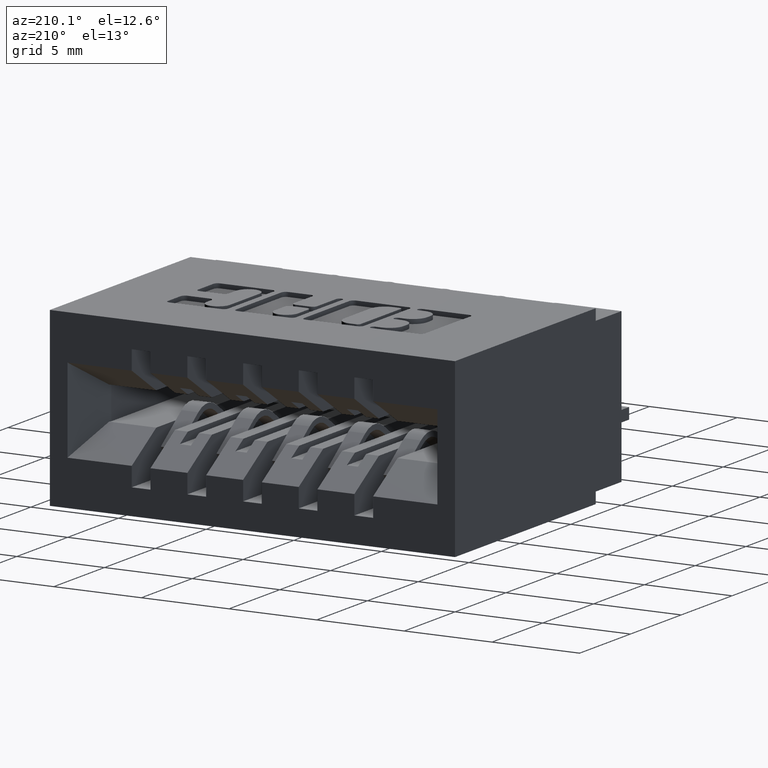
[diagram: clean part render]
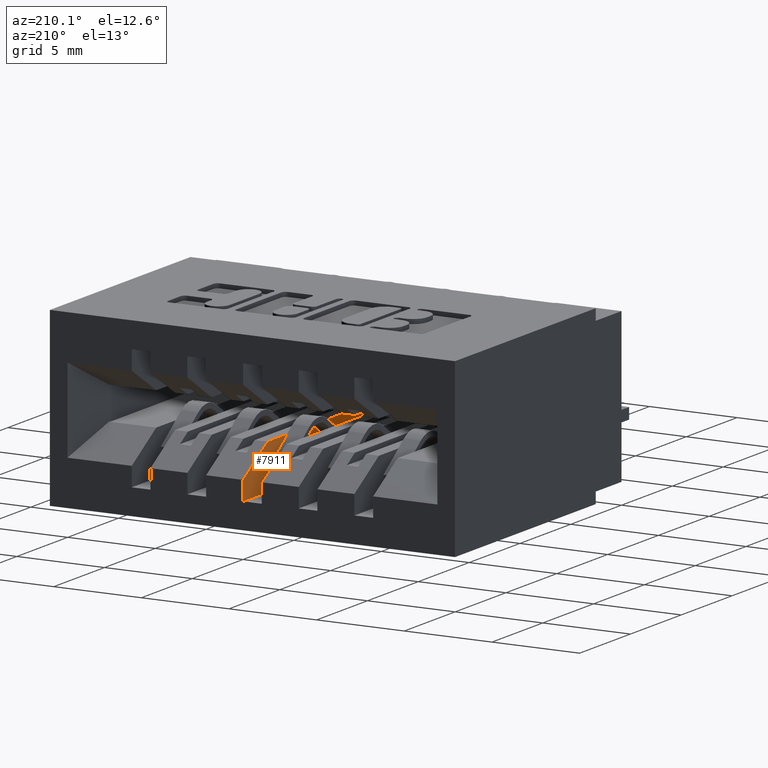
[diagram: same view with one face highlighted and labeled with its STEP entity id]
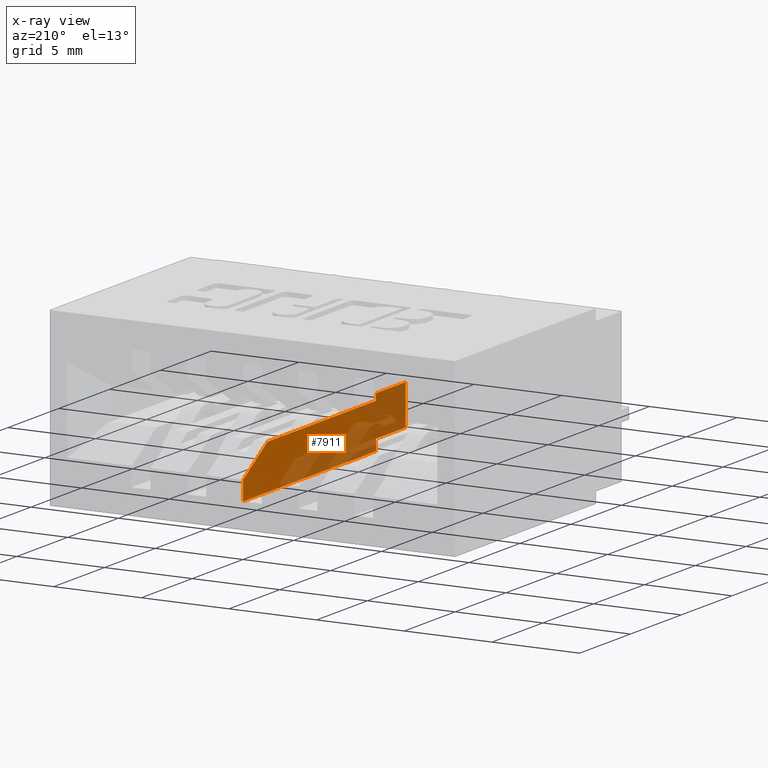
[diagram: x-ray of the same camera — body ghosted, the highlighted face saturated]
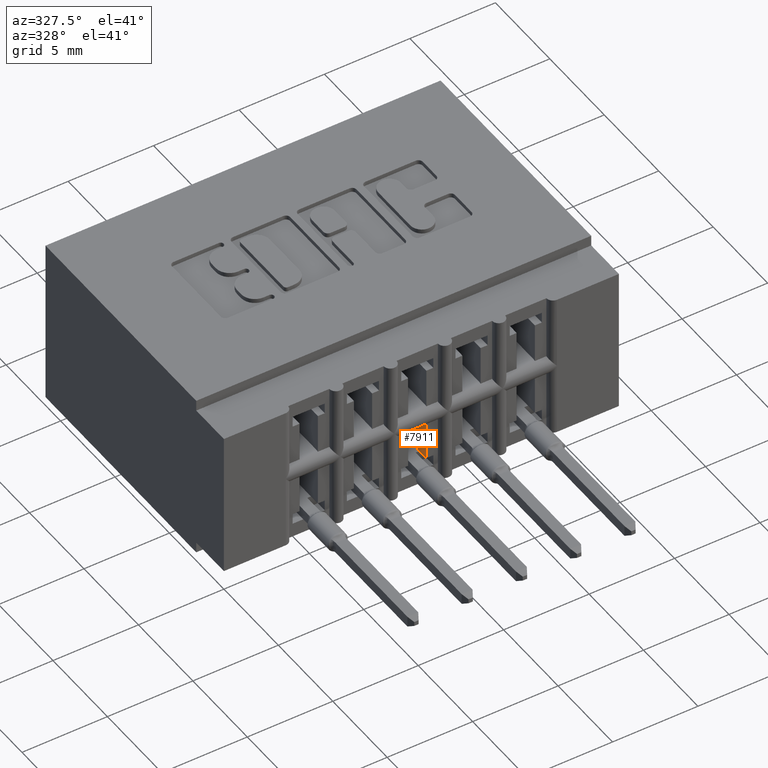
[diagram: same view with one face highlighted and labeled with its STEP entity id]
A machine part, auxiliary view. The second image highlights one B-rep face of the part: STEP entity #7911.
The next image is the same camera in x-ray: the body ghosted, the highlighted face saturated — about 55% of this face is hidden behind the body in this view.
A second angle (auxiliary view) of the same face is appended — the face is thin or edge-on in the first view.
In plain terms, the highlighted planar face has unit normal (1, -0, -0).
Its self-contained STEP definition (entity closure, byte-faithful):
#22 = VECTOR ( 'NONE', #10201, 39.37007874015748143 ) ;
#162 = VECTOR ( 'NONE', #4365, 39.37007874015748143 ) ;
#280 = VERTEX_POINT ( 'NONE', #9713 ) ;
#295 = CARTESIAN_POINT ( 'NONE',  ( 0.4759999999999996456, 0.01499999999999994220, -0.3075000000000000511 ) ) ;
#301 = EDGE_CURVE ( 'NONE', #280, #4105, #10925, .T. ) ;
#715 = CARTESIAN_POINT ( 'NONE',  ( 0.4759999999999995901, 0.01499999999999997169, -0.2158566536146137582 ) ) ;
#824 = LINE ( 'NONE', #1872, #4732 ) ;
#1218 = LINE ( 'NONE', #3228, #7660 ) ;
#1350 = CARTESIAN_POINT ( 'NONE',  ( 0.4759999999990887076, 0.1299999999999999212, -0.2169999999999998597 ) ) ;
#1391 = CARTESIAN_POINT ( 'NONE',  ( 0.4759999999999995901, 0.5499999999999998224, -0.2320000000000000118 ) ) ;
#1516 = CARTESIAN_POINT ( 'NONE',  ( 0.4759999999999995901, 0.02200000000000000566, -0.2169999999999995544 ) ) ;
#1754 = CARTESIAN_POINT ( 'NONE',  ( 0.4759999999999995901, 0.1299999999999999212, -0.2320000000000000118 ) ) ;
#1872 = CARTESIAN_POINT ( 'NONE',  ( 0.4759999999999995901, 0.1299999999999999212, -0.1580000000000000848 ) ) ;
#1884 = EDGE_CURVE ( 'NONE', #3670, #4957, #4199, .T. ) ;
#2242 = VECTOR ( 'NONE', #7921, 39.37007874015748143 ) ;
#2521 = ORIENTED_EDGE ( 'NONE', *, *, #10321, .F. ) ;
#2550 = VERTEX_POINT ( 'NONE', #12272 ) ;
#2693 = ORIENTED_EDGE ( 'NONE', *, *, #11906, .F. ) ;
#3084 = ORIENTED_EDGE ( 'NONE', *, *, #3450, .F. ) ;
#3228 = CARTESIAN_POINT ( 'NONE',  ( 0.4759999999999996456, -1.010728034814419673E-32, -0.3325000000000000178 ) ) ;
#3450 = EDGE_CURVE ( 'NONE', #10102, #5725, #1218, .T. ) ;
#3670 = VERTEX_POINT ( 'NONE', #1516 ) ;
#3865 = DIRECTION ( 'NONE',  ( -2.385081683068867604E-16, 0.0000000000000000000, -1.000000000000000000 ) ) ;
#3988 = CARTESIAN_POINT ( 'NONE',  ( 0.4759999999999996456, 0.6449999999999999067, -0.3325000000000000178 ) ) ;
#4105 = VERTEX_POINT ( 'NONE', #1754 ) ;
#4123 = ORIENTED_EDGE ( 'NONE', *, *, #12384, .T. ) ;
#4199 = LINE ( 'NONE', #1350, #12503 ) ;
#4365 = DIRECTION ( 'NONE',  ( -0.0000000000000000000, 1.000000000000000000, 2.626776916984869807E-16 ) ) ;
#4713 = FACE_OUTER_BOUND ( 'NONE', #12576, .T. ) ;
#4732 = VECTOR ( 'NONE', #4918, 39.37007874015748143 ) ;
#4884 = CARTESIAN_POINT ( 'NONE',  ( 0.4759999999990887076, 0.02200000000000000566, -0.1949999999999995626 ) ) ;
#4918 = DIRECTION ( 'NONE',  ( 2.385081683068867604E-16, 0.0000000000000000000, 1.000000000000000000 ) ) ;
#4957 = VERTEX_POINT ( 'NONE', #5003 ) ;
#5003 = CARTESIAN_POINT ( 'NONE',  ( 0.4759999999999995901, 0.1299999999999999212, -0.2169999999999998597 ) ) ;
#5084 = DIRECTION ( 'NONE',  ( 1.000000000000000000, -4.930380657631322689E-32, -2.385081683068867604E-16 ) ) ;
#5146 = VECTOR ( 'NONE', #10249, 39.37007874015748143 ) ;
#5402 = CARTESIAN_POINT ( 'NONE',  ( 0.4759999999999996456, 0.1299999999999999489, -0.3074999999999999956 ) ) ;
#5535 = AXIS2_PLACEMENT_3D ( 'NONE', #4884, #5084, #7828 ) ;
#5725 = VERTEX_POINT ( 'NONE', #3988 ) ;
#5932 = LINE ( 'NONE', #6124, #2242 ) ;
#6054 = ORIENTED_EDGE ( 'NONE', *, *, #8242, .F. ) ;
#6124 = CARTESIAN_POINT ( 'NONE',  ( 0.4759999999999996456, 0.01499999999999997169, -5.373951300518784932E-17 ) ) ;
#6197 = DIRECTION ( 'NONE',  ( 4.930380657631322689E-32, 1.000000000000000000, -1.137588725299933902E-47 ) ) ;
#6447 = VECTOR ( 'NONE', #6702, 39.37007874015748143 ) ;
#6702 = DIRECTION ( 'NONE',  ( -0.0000000000000000000, -0.0000000000000000000, -1.000000000000000000 ) ) ;
#6758 = CARTESIAN_POINT ( 'NONE',  ( 0.4759999999999996456, 0.1299999999999999489, -0.3325000000000000178 ) ) ;
#6833 = EDGE_CURVE ( 'NONE', #5725, #11348, #9238, .T. ) ;
#6840 = ORIENTED_EDGE ( 'NONE', *, *, #11151, .T. ) ;
#6980 = CARTESIAN_POINT ( 'NONE',  ( 0.4759999999999995901, 0.1299999999999999212, -0.2320000000000000118 ) ) ;
#7414 = VERTEX_POINT ( 'NONE', #715 ) ;
#7639 = AXIS2_PLACEMENT_3D ( 'NONE', #12799, #11679, #3865 ) ;
#7660 = VECTOR ( 'NONE', #6197, 39.37007874015748143 ) ;
#7775 = ORIENTED_EDGE ( 'NONE', *, *, #1884, .T. ) ;
#7828 = DIRECTION ( 'NONE',  ( 0.0000000000000000000, 0.0000000000000000000, -1.000000000000000000 ) ) ;
#7911 = ADVANCED_FACE ( 'NONE', ( #4713 ), #9572, .F. ) ;
#7921 = DIRECTION ( 'NONE',  ( -2.385081683068867604E-16, 0.0000000000000000000, -1.000000000000000000 ) ) ;
#8033 = CARTESIAN_POINT ( 'NONE',  ( 0.4759999999999996456, 0.1299999999999999489, -0.3325000000000000178 ) ) ;
#8173 = LINE ( 'NONE', #5402, #162 ) ;
#8242 = EDGE_CURVE ( 'NONE', #2550, #10102, #10212, .T. ) ;
#8388 = ORIENTED_EDGE ( 'NONE', *, *, #12354, .F. ) ;
#8424 = CARTESIAN_POINT ( 'NONE',  ( 0.4759999999999995901, 0.6449999999999999067, -0.2897500000000000075 ) ) ;
#8877 = DIRECTION ( 'NONE',  ( -4.930380657631322689E-32, -1.000000000000000000, 0.0000000000000000000 ) ) ;
#8968 = VECTOR ( 'NONE', #8877, 39.37007874015748143 ) ;
#9238 = LINE ( 'NONE', #11090, #22 ) ;
#9572 = PLANE ( 'NONE',  #7639 ) ;
#9647 = CIRCLE ( 'NONE', #5535, 0.02199999999999999872 ) ;
#9691 = VERTEX_POINT ( 'NONE', #295 ) ;
#9713 = CARTESIAN_POINT ( 'NONE',  ( 0.4759999999999995901, 0.5499999999999999334, -0.2320000000000000118 ) ) ;
#10102 = VERTEX_POINT ( 'NONE', #8033 ) ;
#10139 = DIRECTION ( 'NONE',  ( -6.294129236962988217E-31, 1.000000000000000000, -2.845674993400276700E-15 ) ) ;
#10201 = DIRECTION ( 'NONE',  ( 2.385081683068867604E-16, 0.0000000000000000000, 1.000000000000000000 ) ) ;
#10212 = LINE ( 'NONE', #6758, #6447 ) ;
#10249 = DIRECTION ( 'NONE',  ( -1.238924702507070723E-16, 0.8545023705661022317, -0.5194474936862353287 ) ) ;
#10321 = EDGE_CURVE ( 'NONE', #4105, #4957, #824, .T. ) ;
#10925 = LINE ( 'NONE', #6980, #8968 ) ;
#11090 = CARTESIAN_POINT ( 'NONE',  ( 0.4759999999999996456, 0.6449999999999999067, -5.373951300518784932E-17 ) ) ;
#11151 = EDGE_CURVE ( 'NONE', #7414, #3670, #9647, .T. ) ;
#11330 = ORIENTED_EDGE ( 'NONE', *, *, #6833, .F. ) ;
#11348 = VERTEX_POINT ( 'NONE', #8424 ) ;
#11679 = DIRECTION ( 'NONE',  ( 1.000000000000000000, -4.930380657631322689E-32, -2.385081683068867604E-16 ) ) ;
#11906 = EDGE_CURVE ( 'NONE', #7414, #9691, #5932, .T. ) ;
#12120 = LINE ( 'NONE', #1391, #5146 ) ;
#12272 = CARTESIAN_POINT ( 'NONE',  ( 0.4759999999999996456, 0.1299999999999999489, -0.3074999999999999956 ) ) ;
#12354 = EDGE_CURVE ( 'NONE', #9691, #2550, #8173, .T. ) ;
#12384 = EDGE_CURVE ( 'NONE', #280, #11348, #12120, .T. ) ;
#12482 = ORIENTED_EDGE ( 'NONE', *, *, #301, .F. ) ;
#12503 = VECTOR ( 'NONE', #10139, 39.37007874015748143 ) ;
#12576 = EDGE_LOOP ( 'NONE', ( #2693, #6840, #7775, #2521, #12482, #4123, #11330, #3084, #6054, #8388 ) ) ;
#12799 = CARTESIAN_POINT ( 'NONE',  ( 0.4759999999999996456, -1.010728034814419673E-32, -5.373951300518784932E-17 ) ) ;